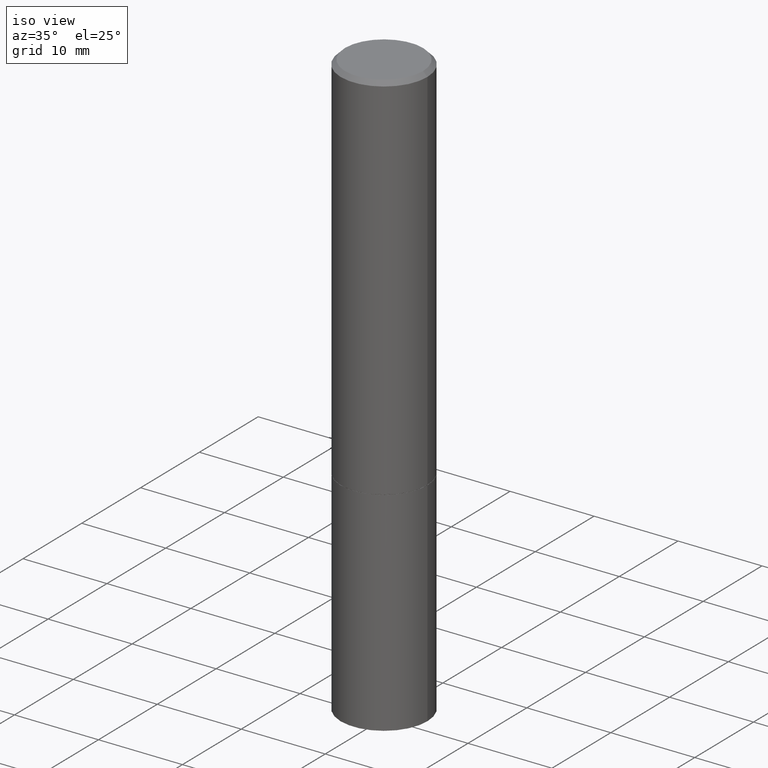
[diagram: clean part render]
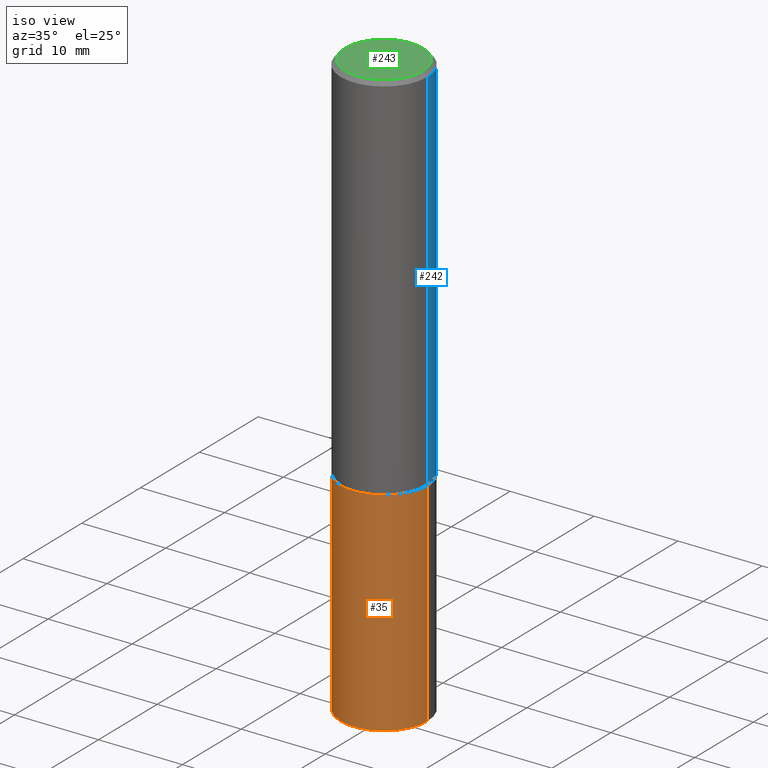
[diagram: same view with three faces highlighted in distinct colors, each labeled with its STEP entity id]
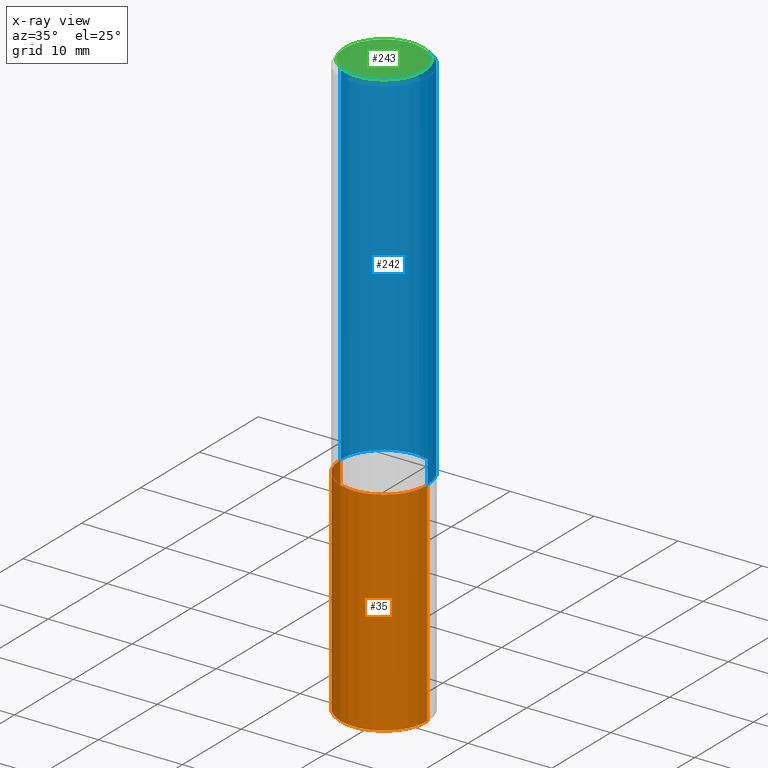
[diagram: x-ray of the same camera — body ghosted, the three highlighted faces saturated]
A machine part, iso view with three faces highlighted in distinct colors.
The next image is the same camera in x-ray (body ghosted, the three faces saturated) — at least one of them is partly hidden behind the body in this view.
Their STEP definitions:

[orange] entity #35 — the highlighted cylindrical surface (partial cylindrical patch) has radius 5.1587 mm, axis along (-0, 0, 1).
#15 = CARTESIAN_POINT ( 'NONE',  ( 0.2030999999999997530, -1.099494082516604752E-14, -2.750000000000000000 ) ) ;
#20 = ORIENTED_EDGE ( 'NONE', *, *, #56, .F. ) ;
#35 = ADVANCED_FACE ( 'NONE', ( #295 ), #363, .T. ) ;
#38 = LINE ( 'NONE', #390, #107 ) ;
#39 = CARTESIAN_POINT ( 'NONE',  ( 0.2031000000000000028, -1.418239719838080775E-15, 9.903515031641546145E-30 ) ) ;
#40 = CIRCLE ( 'NONE', #372, 0.2031000000000000028 ) ;
#43 = CARTESIAN_POINT ( 'NONE',  ( 0.2031000000000000028, -7.528332062813585446E-15, -1.750000000000000000 ) ) ;
#46 = EDGE_CURVE ( 'NONE', #173, #259, #269, .T. ) ;
#56 = EDGE_CURVE ( 'NONE', #165, #173, #38, .T. ) ;
#65 = LINE ( 'NONE', #39, #300 ) ;
#66 = AXIS2_PLACEMENT_3D ( 'NONE', #97, #217, #190 ) ;
#88 = EDGE_LOOP ( 'NONE', ( #20, #145, #198, #389 ) ) ;
#93 = DIRECTION ( 'NONE',  ( 1.000000000000000000, -6.982962677686269866E-15, 0.000000000000000000 ) ) ;
#96 = CARTESIAN_POINT ( 'NONE',  ( -0.2031000000000000028, -6.412720716068313768E-15, -1.750000000000000000 ) ) ;
#97 = CARTESIAN_POINT ( 'NONE',  ( 0.000000000000000000, 0.000000000000000000, 0.000000000000000000 ) ) ;
#107 = VECTOR ( 'NONE', #272, 39.37007874015748143 ) ;
#142 = AXIS2_PLACEMENT_3D ( 'NONE', #364, #388, #93 ) ;
#145 = ORIENTED_EDGE ( 'NONE', *, *, #377, .T. ) ;
#158 = DIRECTION ( 'NONE',  ( -2.445468806185136877E-29, 3.491481338843145188E-15, 1.000000000000000000 ) ) ;
#165 = VERTEX_POINT ( 'NONE', #248 ) ;
#173 = VERTEX_POINT ( 'NONE', #96 ) ;
#190 = DIRECTION ( 'NONE',  ( 1.000000000000000000, -6.982962677686266711E-15, 4.876176775795935793E-29 ) ) ;
#198 = ORIENTED_EDGE ( 'NONE', *, *, #222, .T. ) ;
#217 = DIRECTION ( 'NONE',  ( -2.445468806185136597E-29, 3.491481338843145583E-15, 1.000000000000000000 ) ) ;
#222 = EDGE_CURVE ( 'NONE', #250, #259, #65, .T. ) ;
#224 = CARTESIAN_POINT ( 'NONE',  ( 6.725039217009124520E-29, -9.601573681818649859E-15, -2.750000000000000000 ) ) ;
#226 = DIRECTION ( 'NONE',  ( -2.445468806185136597E-29, 3.491481338843145583E-15, 1.000000000000000000 ) ) ;
#248 = CARTESIAN_POINT ( 'NONE',  ( -0.2030999999999997530, -8.183333961980571451E-15, -2.750000000000000000 ) ) ;
#250 = VERTEX_POINT ( 'NONE', #15 ) ;
#259 = VERTEX_POINT ( 'NONE', #43 ) ;
#269 = CIRCLE ( 'NONE', #142, 0.2031000000000000028 ) ;
#272 = DIRECTION ( 'NONE',  ( -2.445468806185136877E-29, 3.491481338843145188E-15, 1.000000000000000000 ) ) ;
#277 = DIRECTION ( 'NONE',  ( 1.000000000000000000, -6.982962677686264344E-15, 0.000000000000000000 ) ) ;
#295 = FACE_OUTER_BOUND ( 'NONE', #88, .T. ) ;
#300 = VECTOR ( 'NONE', #158, 39.37007874015748143 ) ;
#363 = CYLINDRICAL_SURFACE ( 'NONE', #66, 0.2031000000000000028 ) ;
#364 = CARTESIAN_POINT ( 'NONE',  ( 4.279570410823988484E-29, -6.110092342975504671E-15, -1.750000000000000000 ) ) ;
#372 = AXIS2_PLACEMENT_3D ( 'NONE', #224, #226, #277 ) ;
#377 = EDGE_CURVE ( 'NONE', #165, #250, #40, .T. ) ;
#388 = DIRECTION ( 'NONE',  ( -2.445468806185136597E-29, 3.491481338843145583E-15, 1.000000000000000000 ) ) ;
#389 = ORIENTED_EDGE ( 'NONE', *, *, #46, .F. ) ;
#390 = CARTESIAN_POINT ( 'NONE',  ( -0.2031000000000000028, 1.443112296328763497E-15, -9.990357168307714203E-30 ) ) ;

[blue] entity #242 — the highlighted cylindrical surface (partial cylindrical patch) has radius 5.1587 mm, axis along (-0, 0, 1).
#4 = CARTESIAN_POINT ( 'NONE',  ( 0.2030999999999999472, -1.418239719838080381E-15, 9.903515031641543342E-30 ) ) ;
#5 = AXIS2_PLACEMENT_3D ( 'NONE', #342, #197, #221 ) ;
#7 = CARTESIAN_POINT ( 'NONE',  ( -0.2030999999999998362, 1.348410093061216491E-15, -0.02000000000000004552 ) ) ;
#10 = DIRECTION ( 'NONE',  ( 1.000000000000000000, -6.982962677686266711E-15, 4.876176775795935793E-29 ) ) ;
#29 = VERTEX_POINT ( 'NONE', #120 ) ;
#37 = EDGE_CURVE ( 'NONE', #201, #92, #284, .T. ) ;
#50 = AXIS2_PLACEMENT_3D ( 'NONE', #69, #166, #239 ) ;
#69 = CARTESIAN_POINT ( 'NONE',  ( 4.890937612370284544E-31, -6.982962677686307633E-17, -0.02000000000000004552 ) ) ;
#75 = DIRECTION ( 'NONE',  ( -2.445468806185136597E-29, 3.491481338843145583E-15, 1.000000000000000000 ) ) ;
#78 = FACE_OUTER_BOUND ( 'NONE', #82, .T. ) ;
#82 = EDGE_LOOP ( 'NONE', ( #122, #150, #131, #108 ) ) ;
#92 = VERTEX_POINT ( 'NONE', #7 ) ;
#99 = CARTESIAN_POINT ( 'NONE',  ( -0.2030999999999999472, 1.443112296328763103E-15, -9.990357168307711400E-30 ) ) ;
#104 = EDGE_CURVE ( 'NONE', #29, #92, #275, .T. ) ;
#108 = ORIENTED_EDGE ( 'NONE', *, *, #192, .F. ) ;
#114 = VECTOR ( 'NONE', #212, 39.37007874015748143 ) ;
#120 = CARTESIAN_POINT ( 'NONE',  ( -0.2031000000000000583, -1.645102947877997012E-15, -1.748999999999999888 ) ) ;
#122 = ORIENTED_EDGE ( 'NONE', *, *, #262, .T. ) ;
#131 = ORIENTED_EDGE ( 'NONE', *, *, #37, .F. ) ;
#150 = ORIENTED_EDGE ( 'NONE', *, *, #104, .T. ) ;
#166 = DIRECTION ( 'NONE',  ( -2.445468806185136597E-29, 3.491481338843145583E-15, 1.000000000000000000 ) ) ;
#177 = CIRCLE ( 'NONE', #5, 0.2031000000000000028 ) ;
#183 = AXIS2_PLACEMENT_3D ( 'NONE', #314, #75, #10 ) ;
#186 = DIRECTION ( 'NONE',  ( -2.445468806185136877E-29, 3.491481338843145188E-15, 1.000000000000000000 ) ) ;
#192 = EDGE_CURVE ( 'NONE', #348, #201, #273, .T. ) ;
#196 = VECTOR ( 'NONE', #186, 39.37007874015748143 ) ;
#197 = DIRECTION ( 'NONE',  ( -2.445468806185136597E-29, 3.491481338843145583E-15, 1.000000000000000000 ) ) ;
#200 = CYLINDRICAL_SURFACE ( 'NONE', #183, 0.2030999999999999472 ) ;
#201 = VERTEX_POINT ( 'NONE', #271 ) ;
#212 = DIRECTION ( 'NONE',  ( -2.445468806185136877E-29, 3.491481338843145188E-15, 1.000000000000000000 ) ) ;
#221 = DIRECTION ( 'NONE',  ( 1.000000000000000000, -6.982962677686264344E-15, 0.000000000000000000 ) ) ;
#239 = DIRECTION ( 'NONE',  ( 1.000000000000000000, -6.982962677686266711E-15, 0.000000000000000000 ) ) ;
#242 = ADVANCED_FACE ( 'NONE', ( #78 ), #200, .T. ) ;
#262 = EDGE_CURVE ( 'NONE', #348, #29, #177, .T. ) ;
#271 = CARTESIAN_POINT ( 'NONE',  ( 0.2030999999999998362, -1.463196770124260168E-15, -0.02000000000000004552 ) ) ;
#273 = LINE ( 'NONE', #4, #114 ) ;
#275 = LINE ( 'NONE', #99, #196 ) ;
#284 = CIRCLE ( 'NONE', #50, 0.2030999999999998362 ) ;
#314 = CARTESIAN_POINT ( 'NONE',  ( 0.000000000000000000, 0.000000000000000000, 0.000000000000000000 ) ) ;
#342 = CARTESIAN_POINT ( 'NONE',  ( 4.277124942017804002E-29, -6.106600861636660875E-15, -1.748999999999999888 ) ) ;
#348 = VERTEX_POINT ( 'NONE', #374 ) ;
#374 = CARTESIAN_POINT ( 'NONE',  ( 0.2031000000000000028, -7.524840581474740861E-15, -1.748999999999999888 ) ) ;

[green] entity #243 — the highlighted planar face has unit normal (0, -0, -1).
#12 = CARTESIAN_POINT ( 'NONE',  ( 0.1830999999999998462, -1.359676976758113188E-15, 9.224940175330600101E-30 ) ) ;
#19 = CARTESIAN_POINT ( 'NONE',  ( -0.1830999999999998462, 1.313495279672785236E-15, -9.063697641761070783E-30 ) ) ;
#27 = ORIENTED_EDGE ( 'NONE', *, *, #155, .T. ) ;
#42 = FACE_OUTER_BOUND ( 'NONE', #255, .T. ) ;
#67 = CARTESIAN_POINT ( 'NONE',  ( 0.000000000000000000, 0.000000000000000000, 0.000000000000000000 ) ) ;
#72 = PLANE ( 'NONE',  #362 ) ;
#103 = DIRECTION ( 'NONE',  ( 2.438088387897960049E-29, -3.491481338843145188E-15, -1.000000000000000000 ) ) ;
#128 = DIRECTION ( 'NONE',  ( -2.445468806185136597E-29, 3.491481338843145583E-15, 1.000000000000000000 ) ) ;
#152 = DIRECTION ( 'NONE',  ( -2.445468806185136597E-29, 3.491481338843145583E-15, 1.000000000000000000 ) ) ;
#155 = EDGE_CURVE ( 'NONE', #318, #298, #333, .T. ) ;
#199 = EDGE_CURVE ( 'NONE', #298, #318, #285, .T. ) ;
#216 = DIRECTION ( 'NONE',  ( 1.000000000000000000, -6.982962677686266711E-15, 4.876176775795935793E-29 ) ) ;
#219 = CARTESIAN_POINT ( 'NONE',  ( 0.000000000000000000, 0.000000000000000000, 0.000000000000000000 ) ) ;
#243 = ADVANCED_FACE ( 'NONE', ( #42 ), #72, .F. ) ;
#246 = DIRECTION ( 'NONE',  ( 1.000000000000000000, -6.982962677686266711E-15, 4.876176775795935793E-29 ) ) ;
#251 = DIRECTION ( 'NONE',  ( -1.000000000000000000, 6.982962677686265922E-15, -4.876176775795935793E-29 ) ) ;
#255 = EDGE_LOOP ( 'NONE', ( #357, #27 ) ) ;
#285 = CIRCLE ( 'NONE', #334, 0.1830999999999998462 ) ;
#298 = VERTEX_POINT ( 'NONE', #19 ) ;
#318 = VERTEX_POINT ( 'NONE', #12 ) ;
#333 = CIRCLE ( 'NONE', #346, 0.1830999999999998462 ) ;
#334 = AXIS2_PLACEMENT_3D ( 'NONE', #67, #152, #246 ) ;
#346 = AXIS2_PLACEMENT_3D ( 'NONE', #219, #128, #216 ) ;
#357 = ORIENTED_EDGE ( 'NONE', *, *, #199, .T. ) ;
#362 = AXIS2_PLACEMENT_3D ( 'NONE', #373, #103, #251 ) ;
#373 = CARTESIAN_POINT ( 'NONE',  ( 1.278580466284354179E-15, 0.1830999999999998462, -6.392902331421793574E-16 ) ) ;